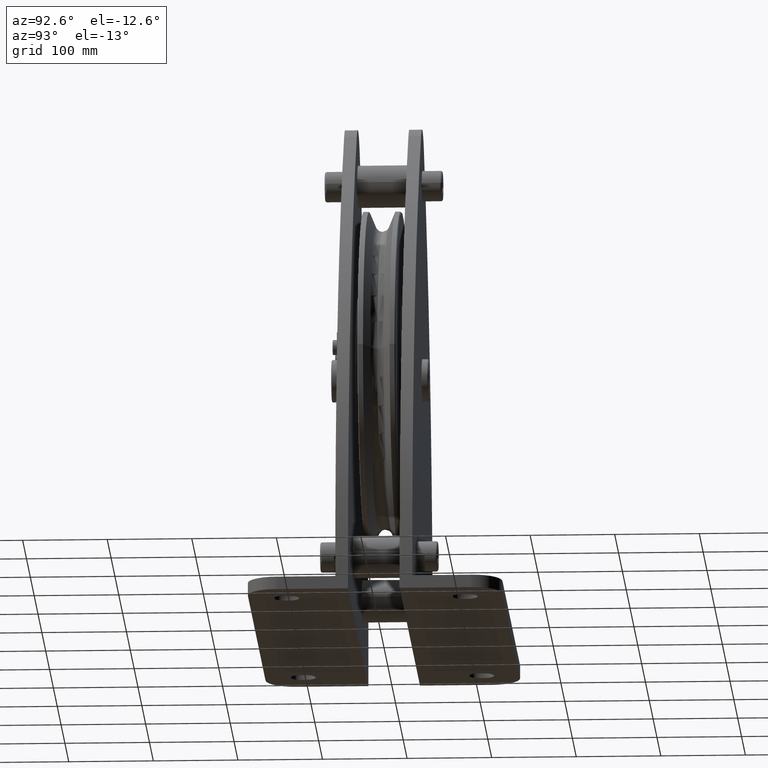
[diagram: clean part render]
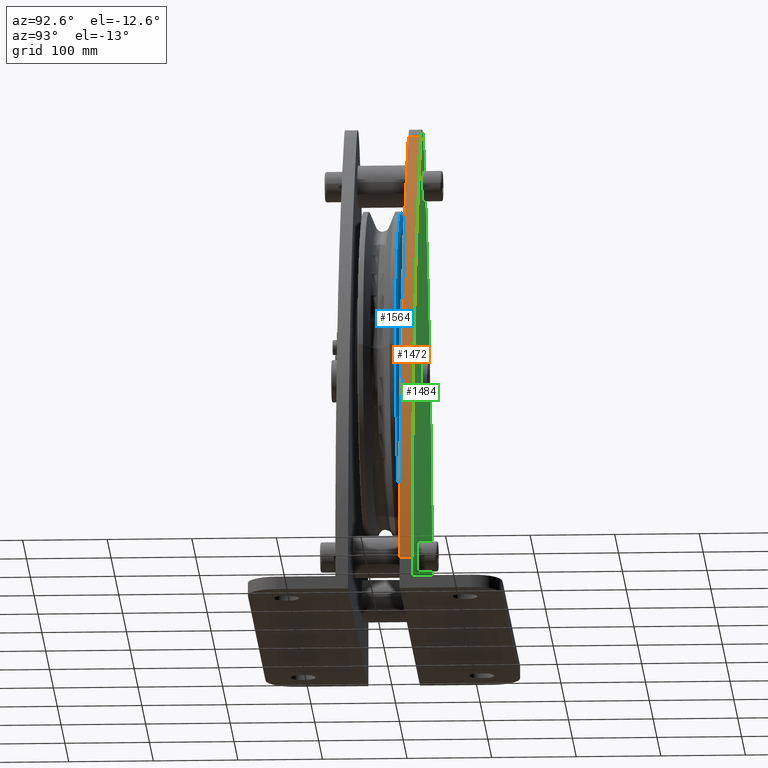
[diagram: same view with three faces highlighted in distinct colors, each labeled with its STEP entity id]
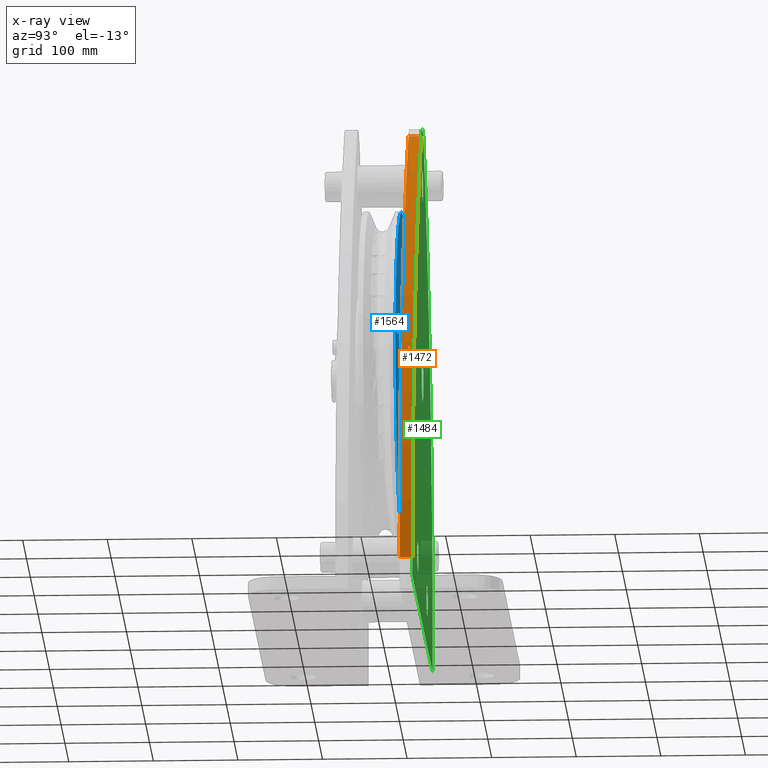
[diagram: x-ray of the same camera — body ghosted, the three highlighted faces saturated]
A machine part, auxiliary view with three faces highlighted in distinct colors.
The next image is the same camera in x-ray (body ghosted, the three faces saturated) — at least one of them is partly hidden behind the body in this view.
Their STEP definitions:

[orange] entity #1472 — the highlighted cylindrical surface (partial cylindrical patch) has radius 800 mm, axis along (-0, 1, 0).
#1472=ADVANCED_FACE('',(#3217),#3218,.T.);
#3217=FACE_OUTER_BOUND('',#5249,.T.);
#3218=CYLINDRICAL_SURFACE('',#5250,799.999999964301);
#5249=EDGE_LOOP('',(#9891,#9892,#9893,#9894));
#5250=AXIS2_PLACEMENT_3D('',#9895,#9896,#9897);
#9891=ORIENTED_EDGE('',*,*,#13784,.T.);
#9892=ORIENTED_EDGE('',*,*,#13785,.F.);
#9893=ORIENTED_EDGE('',*,*,#13777,.T.);
#9894=ORIENTED_EDGE('',*,*,#13786,.T.);
#9895=CARTESIAN_POINT('',(-534.999999964302,30.5,-273.0655370879));
#9896=DIRECTION('',(-0.0,1.0,0.0));
#9897=DIRECTION('',(0.713333333324367,0.0,0.700824910778968));
#13777=EDGE_CURVE('',#17088,#17089,#17090,.T.);
#13784=EDGE_CURVE('',#17101,#17102,#17103,.T.);
#13785=EDGE_CURVE('',#17088,#17102,#17104,.T.);
#13786=EDGE_CURVE('',#17089,#17101,#17105,.T.);
#17088=VERTEX_POINT('',#24609);
#17089=VERTEX_POINT('',#24610);
#17090=CIRCLE('',#24611,799.999999964301);
#17101=VERTEX_POINT('',#24625);
#17102=VERTEX_POINT('',#24626);
#17103=CIRCLE('',#24627,799.999999964301);
#17104=LINE('',#24628,#24629);
#17105=LINE('',#24630,#24631);
#24609=CARTESIAN_POINT('',(35.6666666697264,30.5,287.594391510256));
#24610=CARTESIAN_POINT('',(265.0,30.5,-273.06553711024));
#24611=AXIS2_PLACEMENT_3D('',#28877,#28878,#28879);
#24625=CARTESIAN_POINT('',(265.0,45.5,-273.06553711024));
#24626=CARTESIAN_POINT('',(35.6666666697264,45.5,287.594391510256));
#24627=AXIS2_PLACEMENT_3D('',#28889,#28890,#28891);
#24628=CARTESIAN_POINT('',(35.6666666697264,30.5,287.594391510256));
#24629=VECTOR('',#28892,1.0);
#24630=CARTESIAN_POINT('',(265.0,30.5,-273.06553711024));
#24631=VECTOR('',#28893,1.0);
#28877=CARTESIAN_POINT('',(-534.999999964302,30.5,-273.0655370879));
#28878=DIRECTION('',(-0.0,1.0,0.0));
#28879=DIRECTION('',(0.713333333324367,0.0,0.700824910778968));
#28889=CARTESIAN_POINT('',(-534.999999964302,45.5,-273.0655370879));
#28890=DIRECTION('',(0.0,-1.0,0.0));
#28891=DIRECTION('',(0.713333333324367,0.0,0.700824910778968));
#28892=DIRECTION('',(0.0,1.0,0.0));
#28893=DIRECTION('',(0.0,1.0,0.0));

[blue] entity #1564 — the highlighted planar face has unit normal (0, 1, 0).
#1564=ADVANCED_FACE('',(#3371,#3372),#3373,.T.);
#3371=FACE_OUTER_BOUND('',#5403,.T.);
#3372=FACE_BOUND('',#5404,.T.);
#3373=PLANE('',#5405);
#5403=EDGE_LOOP('',(#10329,#10330));
#5404=EDGE_LOOP('',(#10331,#10332));
#5405=AXIS2_PLACEMENT_3D('',#10333,#10334,#10335);
#10329=ORIENTED_EDGE('',*,*,#12519,.F.);
#10330=ORIENTED_EDGE('',*,*,#13936,.F.);
#10331=ORIENTED_EDGE('',*,*,#13938,.T.);
#10332=ORIENTED_EDGE('',*,*,#12516,.T.);
#10333=CARTESIAN_POINT('',(151.0,22.5,0.0));
#10334=DIRECTION('',(0.0,1.0,0.0));
#10335=DIRECTION('',(-1.0,0.0,-0.0));
#12516=EDGE_CURVE('',#15205,#15208,#15210,.T.);
#12519=EDGE_CURVE('',#15212,#15215,#15216,.T.);
#13936=EDGE_CURVE('',#15215,#15212,#17314,.T.);
#13938=EDGE_CURVE('',#15208,#15205,#17316,.T.);
#15205=VERTEX_POINT('',#22055);
#15208=VERTEX_POINT('',#22058);
#15210=CIRCLE('',#22060,103.0);
#15212=VERTEX_POINT('',#22062);
#15215=VERTEX_POINT('',#22066);
#15216=CIRCLE('',#22067,199.0);
#17314=CIRCLE('',#24904,199.0);
#17316=CIRCLE('',#24906,103.0);
#22055=CARTESIAN_POINT('',(-103.0,22.5,1.26138620312177E-014));
#22058=CARTESIAN_POINT('',(103.0,22.5,0.0));
#22060=AXIS2_PLACEMENT_3D('',#27435,#27436,#27437);
#22062=CARTESIAN_POINT('',(199.0,22.5,0.0));
#22066=CARTESIAN_POINT('',(-199.0,22.5,2.43704713030323E-014));
#22067=AXIS2_PLACEMENT_3D('',#27439,#27440,#27441);
#24904=AXIS2_PLACEMENT_3D('',#29078,#29079,#29080);
#24906=AXIS2_PLACEMENT_3D('',#29081,#29082,#29083);
#27435=CARTESIAN_POINT('',(0.0,22.5,0.0));
#27436=DIRECTION('',(0.0,-1.0,0.0));
#27437=DIRECTION('',(1.0,0.0,0.0));
#27439=CARTESIAN_POINT('',(0.0,22.5,0.0));
#27440=DIRECTION('',(0.0,-1.0,0.0));
#27441=DIRECTION('',(1.0,0.0,0.0));
#29078=CARTESIAN_POINT('',(0.0,22.5,0.0));
#29079=DIRECTION('',(0.0,-1.0,0.0));
#29080=DIRECTION('',(1.0,0.0,0.0));
#29081=CARTESIAN_POINT('',(0.0,22.5,0.0));
#29082=DIRECTION('',(0.0,-1.0,0.0));
#29083=DIRECTION('',(1.0,0.0,0.0));

[green] entity #1484 — the highlighted planar face has unit normal (0, 1, 0).
#1484=ADVANCED_FACE('',(#3237,#3238,#3239,#3240,#3241),#3242,.T.);
#3237=FACE_BOUND('',#5269,.T.);
#3238=FACE_BOUND('',#5270,.T.);
#3239=FACE_BOUND('',#5271,.T.);
#3240=FACE_BOUND('',#5272,.T.);
#3241=FACE_OUTER_BOUND('',#5273,.T.);
#3242=PLANE('',#5274);
#5269=EDGE_LOOP('',(#9953,#9954));
#5270=EDGE_LOOP('',(#9955,#9956));
#5271=EDGE_LOOP('',(#9957,#9958));
#5272=EDGE_LOOP('',(#9959,#9960,#9961));
#5273=EDGE_LOOP('',(#9962,#9963,#9964,#9965,#9966,#9967));
#5274=AXIS2_PLACEMENT_3D('',#9968,#9969,#9970);
#9953=ORIENTED_EDGE('',*,*,#12177,.T.);
#9954=ORIENTED_EDGE('',*,*,#13816,.T.);
#9955=ORIENTED_EDGE('',*,*,#12556,.T.);
#9956=ORIENTED_EDGE('',*,*,#13771,.T.);
#9957=ORIENTED_EDGE('',*,*,#12186,.T.);
#9958=ORIENTED_EDGE('',*,*,#13817,.T.);
#9959=ORIENTED_EDGE('',*,*,#12232,.T.);
#9960=ORIENTED_EDGE('',*,*,#13818,.T.);
#9961=ORIENTED_EDGE('',*,*,#12233,.T.);
#9962=ORIENTED_EDGE('',*,*,#13819,.T.);
#9963=ORIENTED_EDGE('',*,*,#13806,.F.);
#9964=ORIENTED_EDGE('',*,*,#13811,.F.);
#9965=ORIENTED_EDGE('',*,*,#13814,.F.);
#9966=ORIENTED_EDGE('',*,*,#13784,.F.);
#9967=ORIENTED_EDGE('',*,*,#13791,.F.);
#9968=CARTESIAN_POINT('',(-1.56119597077758E-012,45.5,-70.8780156493509));
#9969=DIRECTION('',(0.0,1.0,0.0));
#9970=DIRECTION('',(-1.0,0.0,0.0));
#12177=EDGE_CURVE('',#14637,#14639,#14641,.T.);
#12186=EDGE_CURVE('',#14652,#14654,#14656,.T.);
#12232=EDGE_CURVE('',#14735,#14732,#14736,.T.);
#12233=EDGE_CURVE('',#14737,#14735,#14738,.T.);
#12556=EDGE_CURVE('',#15268,#15272,#15274,.T.);
#13771=EDGE_CURVE('',#15272,#15268,#17082,.T.);
#13784=EDGE_CURVE('',#17101,#17102,#17103,.T.);
#13791=EDGE_CURVE('',#17111,#17101,#17113,.T.);
#13806=EDGE_CURVE('',#17139,#17140,#17141,.T.);
#13811=EDGE_CURVE('',#17147,#17139,#17148,.T.);
#13814=EDGE_CURVE('',#17102,#17147,#17151,.T.);
#13816=EDGE_CURVE('',#14639,#14637,#17153,.T.);
#13817=EDGE_CURVE('',#14654,#14652,#17154,.T.);
#13818=EDGE_CURVE('',#14732,#14737,#17155,.T.);
#13819=EDGE_CURVE('',#17111,#17140,#17156,.T.);
#14637=VERTEX_POINT('',#19396);
#14639=VERTEX_POINT('',#19399);
#14641=CIRCLE('',#19402,18.0);
#14652=VERTEX_POINT('',#19413);
#14654=VERTEX_POINT('',#19416);
#14656=CIRCLE('',#19419,18.0);
#14732=VERTEX_POINT('',#19507);
#14735=VERTEX_POINT('',#19511);
#14736=CIRCLE('',#19512,25.0);
#14737=VERTEX_POINT('',#19513);
#14738=CIRCLE('',#19514,25.0);
#15268=VERTEX_POINT('',#22132);
#15272=VERTEX_POINT('',#22137);
#15274=CIRCLE('',#22140,18.0);
#17082=CIRCLE('',#24603,18.0);
#17101=VERTEX_POINT('',#24625);
#17102=VERTEX_POINT('',#24626);
#17103=CIRCLE('',#24627,799.999999964301);
#17111=VERTEX_POINT('',#24639);
#17113=LINE('',#24642,#24643);
#17139=VERTEX_POINT('',#24675);
#17140=VERTEX_POINT('',#24676);
#17141=LINE('',#24677,#24678);
#17147=VERTEX_POINT('',#24687);
#17148=CIRCLE('',#24688,799.999999964301);
#17151=CIRCLE('',#24692,50.0000000115002);
#17153=CIRCLE('',#24694,18.0);
#17154=CIRCLE('',#24695,18.0);
#17155=CIRCLE('',#24696,25.0);
#17156=LINE('',#24697,#24698);
#19396=CARTESIAN_POINT('',(-102.0,45.5,-240.0));
#19399=CARTESIAN_POINT('',(-138.0,45.5,-240.0));
#19402=AXIS2_PLACEMENT_3D('',#26964,#26965,#26966);
#19413=CARTESIAN_POINT('',(18.0,45.5,235.0));
#19416=CARTESIAN_POINT('',(-18.0,45.5,235.0));
#19419=AXIS2_PLACEMENT_3D('',#26981,#26982,#26983);
#19507=CARTESIAN_POINT('',(3.06161699786838E-015,45.5,-25.0));
#19511=CARTESIAN_POINT('',(-25.0,45.5,0.0));
#19512=AXIS2_PLACEMENT_3D('',#27063,#27064,#27065);
#19513=CARTESIAN_POINT('',(-3.06161699786838E-015,45.5,25.0));
#19514=AXIS2_PLACEMENT_3D('',#27066,#27067,#27068);
#22132=CARTESIAN_POINT('',(138.0,45.5,-240.0));
#22137=CARTESIAN_POINT('',(102.0,45.5,-240.0));
#22140=AXIS2_PLACEMENT_3D('',#27496,#27497,#27498);
#24603=AXIS2_PLACEMENT_3D('',#28862,#28863,#28864);
#24625=CARTESIAN_POINT('',(265.0,45.5,-273.06553711024));
#24626=CARTESIAN_POINT('',(35.6666666697264,45.5,287.594391510256));
#24627=AXIS2_PLACEMENT_3D('',#28889,#28890,#28891);
#24639=CARTESIAN_POINT('',(265.0,45.5,-295.0));
#24642=CARTESIAN_POINT('',(265.0,45.5,-273.06553711));
#24643=VECTOR('',#28897,1.0);
#24675=CARTESIAN_POINT('',(-265.0,45.5,-273.06553711));
#24676=CARTESIAN_POINT('',(-265.0,45.5,-295.0));
#24677=CARTESIAN_POINT('',(-265.0,45.5,-310.0));
#24678=VECTOR('',#28922,1.0);
#24687=CARTESIAN_POINT('',(-35.6666666697263,45.5,287.594391510256));
#24688=AXIS2_PLACEMENT_3D('',#28926,#28927,#28928);
#24692=AXIS2_PLACEMENT_3D('',#28930,#28931,#28932);
#24694=AXIS2_PLACEMENT_3D('',#28933,#28934,#28935);
#24695=AXIS2_PLACEMENT_3D('',#28936,#28937,#28938);
#24696=AXIS2_PLACEMENT_3D('',#28939,#28940,#28941);
#24697=CARTESIAN_POINT('',(-7.95807864051312E-013,45.5,-295.0));
#24698=VECTOR('',#28942,1.0);
#26964=CARTESIAN_POINT('',(-120.0,45.5,-240.0));
#26965=DIRECTION('',(0.0,-1.0,0.0));
#26966=DIRECTION('',(1.0,0.0,0.0));
#26981=CARTESIAN_POINT('',(0.0,45.5,235.0));
#26982=DIRECTION('',(0.0,-1.0,0.0));
#26983=DIRECTION('',(1.0,0.0,0.0));
#27063=CARTESIAN_POINT('',(0.0,45.5,0.0));
#27064=DIRECTION('',(-0.0,-1.0,-0.0));
#27065=DIRECTION('',(-1.0,0.0,0.0));
#27066=CARTESIAN_POINT('',(0.0,45.5,0.0));
#27067=DIRECTION('',(-0.0,-1.0,-0.0));
#27068=DIRECTION('',(-1.0,0.0,0.0));
#27496=CARTESIAN_POINT('',(120.0,45.5,-240.0));
#27497=DIRECTION('',(0.0,-1.0,0.0));
#27498=DIRECTION('',(1.0,0.0,0.0));
#28862=CARTESIAN_POINT('',(120.0,45.5,-240.0));
#28863=DIRECTION('',(0.0,-1.0,0.0));
#28864=DIRECTION('',(1.0,0.0,0.0));
#28889=CARTESIAN_POINT('',(-534.999999964302,45.5,-273.0655370879));
#28890=DIRECTION('',(0.0,-1.0,0.0));
#28891=DIRECTION('',(0.713333333324367,0.0,0.700824910778968));
#28897=DIRECTION('',(0.0,0.0,1.0));
#28922=DIRECTION('',(0.0,-0.0,-1.0));
#28926=CARTESIAN_POINT('',(534.999999964301,45.5,-273.0655370879));
#28927=DIRECTION('',(0.0,-1.0,-0.0));
#28928=DIRECTION('',(-1.0,0.0,-2.79251111136274E-011));
#28930=CARTESIAN_POINT('',(-1.4210854715202E-014,45.5,252.5531459585));
#28931=DIRECTION('',(0.0,-1.0,0.0));
#28932=DIRECTION('',(-0.713333333236294,0.0,0.700824910868612));
#28933=CARTESIAN_POINT('',(-120.0,45.5,-240.0));
#28934=DIRECTION('',(0.0,-1.0,0.0));
#28935=DIRECTION('',(1.0,0.0,0.0));
#28936=CARTESIAN_POINT('',(0.0,45.5,235.0));
#28937=DIRECTION('',(0.0,-1.0,0.0));
#28938=DIRECTION('',(1.0,0.0,0.0));
#28939=CARTESIAN_POINT('',(0.0,45.5,0.0));
#28940=DIRECTION('',(-0.0,-1.0,-0.0));
#28941=DIRECTION('',(-1.0,0.0,0.0));
#28942=DIRECTION('',(-1.0,0.0,0.0));